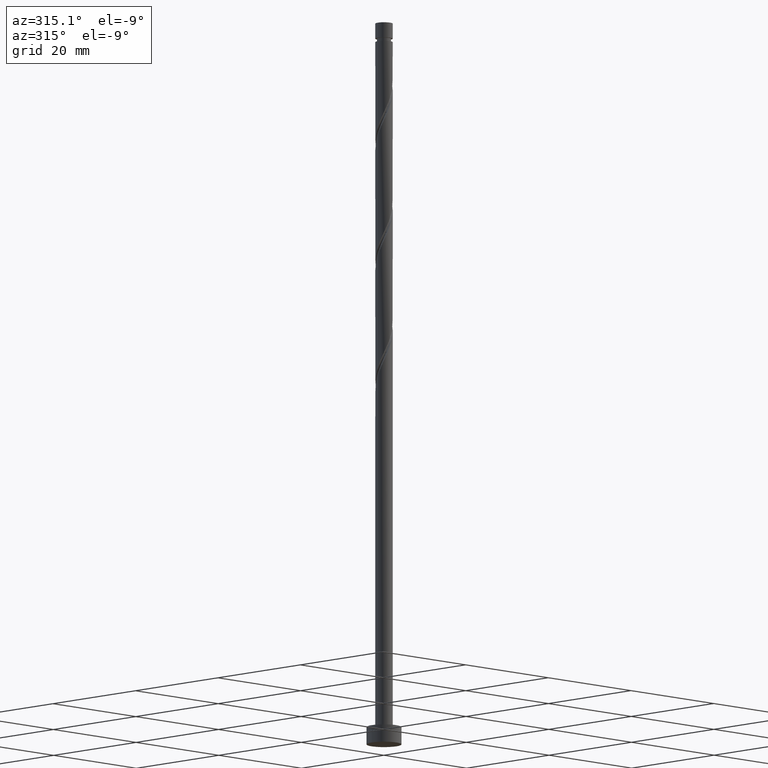
[diagram: clean part render]
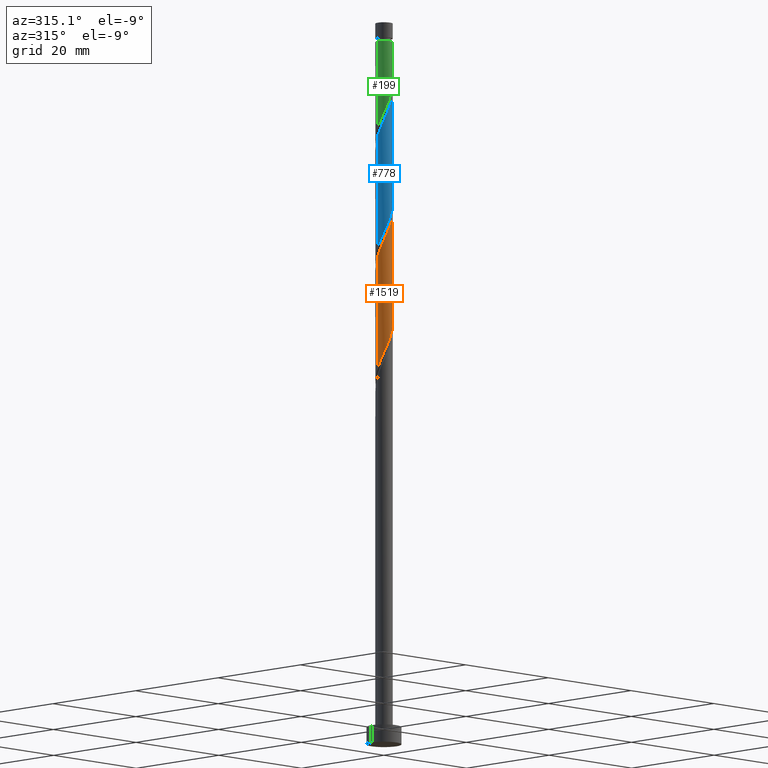
[diagram: same view with three faces highlighted in distinct colors, each labeled with its STEP entity id]
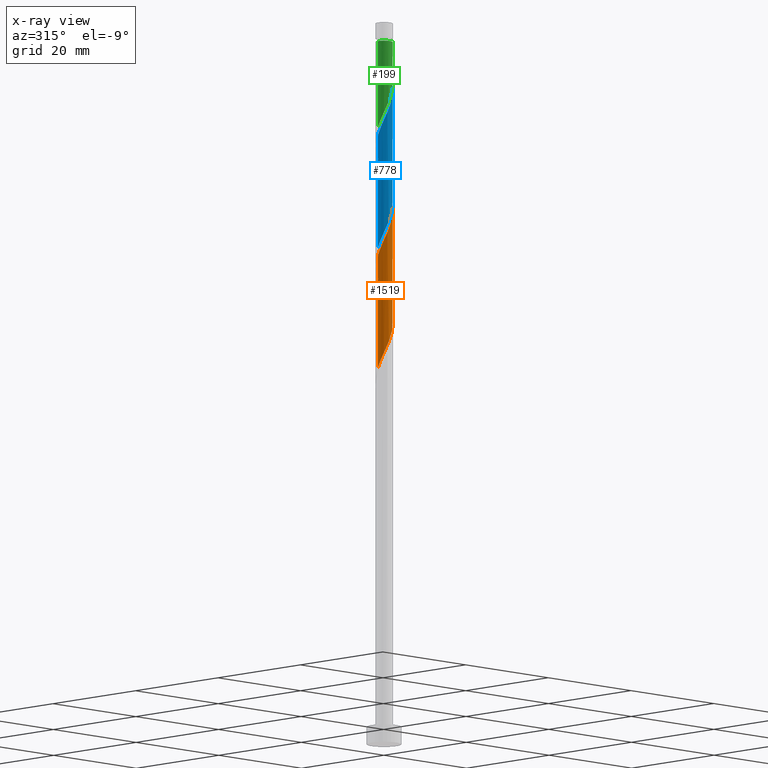
[diagram: x-ray of the same camera — body ghosted, the three highlighted faces saturated]
A machine part, auxiliary view with three faces highlighted in distinct colors.
The next image is the same camera in x-ray (body ghosted, the three faces saturated) — at least one of them is partly hidden behind the body in this view.
Their STEP definitions:

[orange] entity #1519 — the highlighted cylindrical surface (edge-blend (fillet) strip) has radius 1.5 mm, axis along (-0, -0, -1).
#41 = CARTESIAN_POINT ( 'NONE',  ( 0.7381417674387932282, -1.305812670777222406, 91.57399813780361342 ) ) ;
#43 = CARTESIAN_POINT ( 'NONE',  ( -0.7381417674387926731, -1.305812670777219964, 68.65733147113692780 ) ) ;
#54 = CARTESIAN_POINT ( 'NONE',  ( 0.4064074959020236300, -1.463309815754240795, 71.26149813780359921 ) ) ;
#64 = CARTESIAN_POINT ( 'NONE',  ( -1.105532844612584720, -1.013803299206905706, 67.61566480447028482 ) ) ;
#84 = CARTESIAN_POINT ( 'NONE',  ( 1.490293487130534444, -0.1703681960235537418, 94.69899813780359921 ) ) ;
#93 = CARTESIAN_POINT ( 'NONE',  ( 1.500000000000002665, 1.266917185180876536E-15, 95.07586236299998461 ) ) ;
#94 = CARTESIAN_POINT ( 'NONE',  ( -0.6225557971272880353, -1.364706664255441737, 88.44899813780361342 ) ) ;
#139 = CARTESIAN_POINT ( 'NONE',  ( 1.500000000000002665, 1.266917185180876536E-15, 95.07586236299998461 ) ) ;
#150 = CARTESIAN_POINT ( 'NONE',  ( 1.500000000000000222, 1.836970198721029934E-16, 125.0000000000000000 ) ) ;
#166 = CARTESIAN_POINT ( 'NONE',  ( -0.9449621764685306458, -1.188902500061263190, 68.13649813780359921 ) ) ;
#176 = VERTEX_POINT ( 'NONE', #1296 ) ;
#207 = LINE ( 'NONE', #487, #1478 ) ;
#236 = FACE_OUTER_BOUND ( 'NONE', #1024, .T. ) ;
#250 = CARTESIAN_POINT ( 'NONE',  ( 0.9449621764685315339, -1.188902500061264966, 92.09483147113692780 ) ) ;
#271 = LINE ( 'NONE', #150, #452 ) ;
#274 = ORIENTED_EDGE ( 'NONE', *, *, #951, .F. ) ;
#282 = VERTEX_POINT ( 'NONE', #139 ) ;
#286 = CARTESIAN_POINT ( 'NONE',  ( 1.500000000000000222, 2.136517146606817739E-15, 75.57213391260719959 ) ) ;
#303 = ORIENTED_EDGE ( 'NONE', *, *, #1494, .F. ) ;
#308 = CARTESIAN_POINT ( 'NONE',  ( 0.8387040983525491100, -1.266103512756638683, 72.30316480447027061 ) ) ;
#324 = CARTESIAN_POINT ( 'NONE',  ( -1.422722841493179624, -0.5313213584090550334, 85.84483147113692780 ) ) ;
#358 = CARTESIAN_POINT ( 'NONE',  ( 0.2984962311319862560, -1.470000000000002860, 90.53233147113692780 ) ) ;
#414 = CARTESIAN_POINT ( 'NONE',  ( -1.500000000000000222, 1.889130950683923294E-15, 65.15546724594054240 ) ) ;
#428 = CARTESIAN_POINT ( 'NONE',  ( 1.188902500061263190, -0.9449621764685306458, 73.34483147113694201 ) ) ;
#433 =( BOUNDED_CURVE ( )  B_SPLINE_CURVE ( 2, ( #1027, #1522, #1402, #903, #1252, #428, #789, #308, #797, #54, #555, #1513, #781, #1271, #43, #166, #64, #654, #1504, #539, #910, #1394, #414 ),
 .UNSPECIFIED., .F., .T. ) 
 B_SPLINE_CURVE_WITH_KNOTS ( ( 3, 2, 2, 2, 2, 2, 2, 2, 2, 2, 2, 3 ),
 ( 0.8045322023138552492, 0.8125000000000000000, 0.8249999999999999556, 0.8375000000000000222, 0.8499999999999999778, 0.8625000000000000444, 0.8750000000000000000, 0.8874999999999999556, 0.9000000000000000222, 0.9124999999999999778, 0.9250000000000000444, 0.9295322023138551382 ),
 .UNSPECIFIED. ) 
 CURVE ( )  GEOMETRIC_REPRESENTATION_ITEM ( )  RATIONAL_B_SPLINE_CURVE ( ( 0.9039174447099388443, 0.9019565955404682533, 0.9090909090909166101, 0.8978984914501326742, 0.9090909090909166101, 0.8978984914501326742, 0.9090909090909166101, 0.8978984914501326742, 0.9090909090909166101, 0.8978984914501326742, 0.9090909090909166101, 0.8978984914501326742, 0.9090909090909166101, 0.8978984914501326742, 0.9090909090909166101, 0.8978984914501326742, 0.9090909090909166101, 0.8978984914501326742, 0.9090909090909166101, 0.8978984914501326742, 0.9090909090909166101, 0.9050328050005811420, 0.9039174447099389553 ) ) 
 REPRESENTATION_ITEM ( '' )  );
#452 = VECTOR ( 'NONE', #1018, 1000.000000000000000 ) ;
#476 = CARTESIAN_POINT ( 'NONE',  ( -0.4064074959020249067, -1.463309815754242571, 88.96983147113692780 ) ) ;
#487 = CARTESIAN_POINT ( 'NONE',  ( -1.500000000000000222, 0.000000000000000000, 125.0000000000000000 ) ) ;
#500 = CARTESIAN_POINT ( 'NONE',  ( 1.105532844612586274, -1.013803299206907704, 92.61566480447025640 ) ) ;
#535 = ORIENTED_EDGE ( 'NONE', *, *, #1446, .T. ) ;
#539 = CARTESIAN_POINT ( 'NONE',  ( -1.463309815754240795, -0.4064074959020237410, 66.05316480447028482 ) ) ;
#555 = CARTESIAN_POINT ( 'NONE',  ( 0.1703681960235527981, -1.490293487130532002, 70.74066480447028482 ) ) ;
#593 = CARTESIAN_POINT ( 'NONE',  ( -1.470000000000002860, -0.2984962311319863670, 85.32399813780355657 ) ) ;
#654 = CARTESIAN_POINT ( 'NONE',  ( -1.266103512756638683, -0.8387040983525491100, 67.09483147113694201 ) ) ;
#661 =( BOUNDED_CURVE ( )  B_SPLINE_CURVE ( 2, ( #836, #981, #593, #324, #1183, #1325, #1093, #1574, #94, #476, #971, #1454, #358, #1117, #41, #250, #500, #866, #1126, #1354, #84, #1334, #93 ),
 .UNSPECIFIED., .F., .T. ) 
 B_SPLINE_CURVE_WITH_KNOTS ( ( 3, 2, 2, 2, 2, 2, 2, 2, 2, 2, 2, 3 ),
 ( 0.3045322023138551382, 0.3125000000000000000, 0.3249999999999999556, 0.3375000000000000222, 0.3499999999999999778, 0.3625000000000000444, 0.3750000000000000000, 0.3874999999999999556, 0.4000000000000000222, 0.4124999999999999778, 0.4250000000000000444, 0.4295322023138549716 ),
 .UNSPECIFIED. ) 
 CURVE ( )  GEOMETRIC_REPRESENTATION_ITEM ( )  RATIONAL_B_SPLINE_CURVE ( ( 0.9039174447099449505, 0.9019565955404742486, 0.9090909090909228274, 0.8978984914501387804, 0.9090909090909228274, 0.8978984914501387804, 0.9090909090909228274, 0.8978984914501387804, 0.9090909090909228274, 0.8978984914501387804, 0.9090909090909228274, 0.8978984914501387804, 0.9090909090909228274, 0.8978984914501387804, 0.9090909090909228274, 0.8978984914501387804, 0.9090909090909228274, 0.8978984914501387804, 0.9090909090909228274, 0.8978984914501387804, 0.9090909090909228274, 0.9050328050005873592, 0.9039174447099451726 ) ) 
 REPRESENTATION_ITEM ( '' )  );
#781 = CARTESIAN_POINT ( 'NONE',  ( -0.2984962311319863670, -1.470000000000000417, 69.69899813780357078 ) ) ;
#786 = ORIENTED_EDGE ( 'NONE', *, *, #1103, .F. ) ;
#789 = CARTESIAN_POINT ( 'NONE',  ( 1.013803299206905706, -1.105532844612584720, 72.82399813780359921 ) ) ;
#797 = CARTESIAN_POINT ( 'NONE',  ( 0.6225557971272865920, -1.364706664255439961, 71.78233147113695622 ) ) ;
#836 = CARTESIAN_POINT ( 'NONE',  ( -1.500000000000002665, -1.476820624145755631E-15, 84.65919569633332742 ) ) ;
#866 = CARTESIAN_POINT ( 'NONE',  ( 1.266103512756640459, -0.8387040983525511084, 93.13649813780362763 ) ) ;
#874 = CARTESIAN_POINT ( 'NONE',  ( -1.500000000000000222, 1.889130950683923294E-15, 65.15546724594054240 ) ) ;
#903 = CARTESIAN_POINT ( 'NONE',  ( 1.422722841493176738, -0.5313213584090548114, 74.38649813780359921 ) ) ;
#910 = CARTESIAN_POINT ( 'NONE',  ( -1.490293487130532002, -0.1703681960235528814, 65.53233147113694201 ) ) ;
#913 = VERTEX_POINT ( 'NONE', #874 ) ;
#942 = CARTESIAN_POINT ( 'NONE',  ( 0.000000000000000000, 0.000000000000000000, 125.0000000000000000 ) ) ;
#944 = AXIS2_PLACEMENT_3D ( 'NONE', #942, #1083, #1305 ) ;
#951 = EDGE_CURVE ( 'NONE', #282, #1112, #271, .T. ) ;
#971 = CARTESIAN_POINT ( 'NONE',  ( -0.1703681960235536863, -1.490293487130534444, 89.49066480447027061 ) ) ;
#981 = CARTESIAN_POINT ( 'NONE',  ( -1.500000000000002665, -0.1507556722888806489, 84.99350027174115496 ) ) ;
#1018 = DIRECTION ( 'NONE',  ( -0.000000000000000000, -0.000000000000000000, -1.000000000000000000 ) ) ;
#1024 = EDGE_LOOP ( 'NONE', ( #274, #303, #535, #786 ) ) ;
#1027 = CARTESIAN_POINT ( 'NONE',  ( 1.500000000000000222, 2.136517146606817344E-15, 75.57213391260719959 ) ) ;
#1083 = DIRECTION ( 'NONE',  ( -0.000000000000000000, -0.000000000000000000, -1.000000000000000000 ) ) ;
#1093 = CARTESIAN_POINT ( 'NONE',  ( -1.013803299206907704, -1.105532844612586274, 87.40733147113695622 ) ) ;
#1103 = EDGE_CURVE ( 'NONE', #1112, #913, #433, .T. ) ;
#1112 = VERTEX_POINT ( 'NONE', #286 ) ;
#1117 = CARTESIAN_POINT ( 'NONE',  ( 0.5313213584090549224, -1.422722841493179624, 91.05316480447028482 ) ) ;
#1126 = CARTESIAN_POINT ( 'NONE',  ( 1.364706664255441737, -0.6225557971272880353, 93.65733147113694201 ) ) ;
#1183 = CARTESIAN_POINT ( 'NONE',  ( -1.305812670777222406, -0.7381417674387935612, 86.36566480447025640 ) ) ;
#1252 = CARTESIAN_POINT ( 'NONE',  ( 1.305812670777219964, -0.7381417674387926731, 73.86566480447028482 ) ) ;
#1271 = CARTESIAN_POINT ( 'NONE',  ( -0.5313213584090547004, -1.422722841493176738, 69.17816480447025640 ) ) ;
#1296 = CARTESIAN_POINT ( 'NONE',  ( -1.500000000000002665, -1.476820624145755631E-15, 84.65919569633332742 ) ) ;
#1305 = DIRECTION ( 'NONE',  ( -1.000000000000000000, 0.000000000000000000, 0.000000000000000000 ) ) ;
#1325 = CARTESIAN_POINT ( 'NONE',  ( -1.188902500061264966, -0.9449621764685317560, 86.88649813780361342 ) ) ;
#1334 = CARTESIAN_POINT ( 'NONE',  ( 1.500000000000001998, -0.08546060616965421575, 94.88635127379269818 ) ) ;
#1354 = CARTESIAN_POINT ( 'NONE',  ( 1.463309815754242571, -0.4064074959020249067, 94.17816480447028482 ) ) ;
#1394 = CARTESIAN_POINT ( 'NONE',  ( -1.500000000000000222, -0.08546060616965032997, 65.34497833514781462 ) ) ;
#1402 = CARTESIAN_POINT ( 'NONE',  ( 1.470000000000000417, -0.2984962311319864781, 74.90733147113692780 ) ) ;
#1434 = CYLINDRICAL_SURFACE ( 'NONE', #944, 1.500000000000000222 ) ;
#1444 = DIRECTION ( 'NONE',  ( -0.000000000000000000, -0.000000000000000000, -1.000000000000000000 ) ) ;
#1446 = EDGE_CURVE ( 'NONE', #176, #913, #207, .T. ) ;
#1454 = CARTESIAN_POINT ( 'NONE',  ( 0.06567110385491743696, -1.517277158506825430, 90.01149813780362763 ) ) ;
#1478 = VECTOR ( 'NONE', #1444, 1000.000000000000000 ) ;
#1494 = EDGE_CURVE ( 'NONE', #176, #282, #661, .T. ) ;
#1504 = CARTESIAN_POINT ( 'NONE',  ( -1.364706664255439961, -0.6225557971272865920, 66.57399813780359921 ) ) ;
#1513 = CARTESIAN_POINT ( 'NONE',  ( -0.06567110385491804758, -1.517277158506823431, 70.21983147113695622 ) ) ;
#1519 = ADVANCED_FACE ( 'NONE', ( #236 ), #1434, .T. ) ;
#1522 = CARTESIAN_POINT ( 'NONE',  ( 1.499999999999999778, -0.1507556722888830636, 75.23782933719934363 ) ) ;
#1574 = CARTESIAN_POINT ( 'NONE',  ( -0.8387040983525508864, -1.266103512756640459, 87.92816480447028482 ) ) ;

[blue] entity #778 — the highlighted cylindrical surface (edge-blend (fillet) strip) has radius 1.5 mm, axis along (-0, -0, -1).
#105 = CARTESIAN_POINT ( 'NONE',  ( -0.8387040983525508864, -1.266103512756640459, 108.7614981378035992 ) ) ;
#116 = CARTESIAN_POINT ( 'NONE',  ( -1.013803299206907704, -1.105532844612586274, 108.2406648044702848 ) ) ;
#123 = CARTESIAN_POINT ( 'NONE',  ( 0.000000000000000000, 0.000000000000000000, 125.0000000000000000 ) ) ;
#128 = CARTESIAN_POINT ( 'NONE',  ( -1.266103512756638683, -0.8387040983525491100, 87.92816480447028482 ) ) ;
#133 = LINE ( 'NONE', #862, #998 ) ;
#141 = CARTESIAN_POINT ( 'NONE',  ( -1.105532844612584720, -1.013803299206905706, 88.44899813780359921 ) ) ;
#187 =( BOUNDED_CURVE ( )  B_SPLINE_CURVE ( 2, ( #895, #642, #1378, #773, #1263, #1144, #300, #1212, #373, #993, #854, #614, #356, #1205, #709, #1344, #141, #128, #1099, #727, #1227, #367, #961 ),
 .UNSPECIFIED., .F., .T. ) 
 B_SPLINE_CURVE_WITH_KNOTS ( ( 3, 2, 2, 2, 2, 2, 2, 2, 2, 2, 2, 3 ),
 ( 0.5545322023138554712, 0.5625000000000000000, 0.5749999999999999556, 0.5875000000000000222, 0.5999999999999999778, 0.6125000000000000444, 0.6250000000000000000, 0.6374999999999999556, 0.6500000000000000222, 0.6624999999999999778, 0.6750000000000000444, 0.6795322023138554712 ),
 .UNSPECIFIED. ) 
 CURVE ( )  GEOMETRIC_REPRESENTATION_ITEM ( )  RATIONAL_B_SPLINE_CURVE ( ( 0.9039174447099385112, 0.9019565955404683644, 0.9090909090909166101, 0.8978984914501326742, 0.9090909090909166101, 0.8978984914501326742, 0.9090909090909166101, 0.8978984914501326742, 0.9090909090909166101, 0.8978984914501326742, 0.9090909090909166101, 0.8978984914501326742, 0.9090909090909166101, 0.8978984914501326742, 0.9090909090909166101, 0.8978984914501326742, 0.9090909090909166101, 0.8978984914501326742, 0.9090909090909166101, 0.8978984914501326742, 0.9090909090909166101, 0.9050328050005806979, 0.9039174447099385112 ) ) 
 REPRESENTATION_ITEM ( '' )  );
#229 = CARTESIAN_POINT ( 'NONE',  ( 1.463309815754242571, -0.4064074959020249067, 115.0114981378035992 ) ) ;
#244 = CARTESIAN_POINT ( 'NONE',  ( 1.500000000000002442, 5.022689432373888828E-16, 115.9091956963333132 ) ) ;
#251 = DIRECTION ( 'NONE',  ( -1.000000000000000000, 0.000000000000000000, 0.000000000000000000 ) ) ;
#300 = CARTESIAN_POINT ( 'NONE',  ( 1.013803299206905706, -1.105532844612584720, 93.65733147113692780 ) ) ;
#356 = CARTESIAN_POINT ( 'NONE',  ( -0.2984962311319863670, -1.470000000000000417, 90.53233147113694201 ) ) ;
#357 = VERTEX_POINT ( 'NONE', #1332 ) ;
#367 = CARTESIAN_POINT ( 'NONE',  ( -1.500000000000000888, -0.08546060616964409884, 86.17831166848114322 ) ) ;
#373 = CARTESIAN_POINT ( 'NONE',  ( 0.6225557971272865920, -1.364706664255439961, 92.61566480447028482 ) ) ;
#399 = DIRECTION ( 'NONE',  ( -0.000000000000000000, -0.000000000000000000, -1.000000000000000000 ) ) ;
#413 = CARTESIAN_POINT ( 'NONE',  ( 1.500000000000000222, 2.136517146606817739E-15, 96.40546724594052819 ) ) ;
#429 = CARTESIAN_POINT ( 'NONE',  ( 0.9449621764685315339, -1.188902500061264966, 112.9281648044702848 ) ) ;
#478 = EDGE_CURVE ( 'NONE', #1063, #357, #1495, .T. ) ;
#563 = CARTESIAN_POINT ( 'NONE',  ( 1.266103512756640459, -0.8387040983525511084, 113.9698314711369278 ) ) ;
#572 = EDGE_CURVE ( 'NONE', #1063, #785, #1273, .T. ) ;
#580 = CARTESIAN_POINT ( 'NONE',  ( 0.06567110385491743696, -1.517277158506825430, 110.8448314711369420 ) ) ;
#614 = CARTESIAN_POINT ( 'NONE',  ( -0.06567110385491804758, -1.517277158506823431, 91.05316480447025640 ) ) ;
#638 = ORIENTED_EDGE ( 'NONE', *, *, #1213, .F. ) ;
#642 = CARTESIAN_POINT ( 'NONE',  ( 1.499999999999999334, -0.1507556722888872547, 96.07116267053270064 ) ) ;
#673 = CARTESIAN_POINT ( 'NONE',  ( 1.500000000000002442, 5.022689432373888828E-16, 115.9091956963333132 ) ) ;
#703 = CARTESIAN_POINT ( 'NONE',  ( -1.305812670777222406, -0.7381417674387935612, 107.1989981378035850 ) ) ;
#709 = CARTESIAN_POINT ( 'NONE',  ( -0.7381417674387926731, -1.305812670777219964, 89.49066480447029903 ) ) ;
#727 = CARTESIAN_POINT ( 'NONE',  ( -1.463309815754240795, -0.4064074959020237410, 86.88649813780361342 ) ) ;
#731 = VECTOR ( 'NONE', #399, 1000.000000000000000 ) ;
#737 = EDGE_LOOP ( 'NONE', ( #638, #1530, #1389, #1269 ) ) ;
#740 = DIRECTION ( 'NONE',  ( -0.000000000000000000, -0.000000000000000000, -1.000000000000000000 ) ) ;
#773 = CARTESIAN_POINT ( 'NONE',  ( 1.422722841493176738, -0.5313213584090548114, 95.21983147113694201 ) ) ;
#778 = ADVANCED_FACE ( 'NONE', ( #1110 ), #982, .T. ) ;
#785 = VERTEX_POINT ( 'NONE', #244 ) ;
#798 = CARTESIAN_POINT ( 'NONE',  ( 1.105532844612586274, -1.013803299206907704, 113.4489981378036134 ) ) ;
#815 = CARTESIAN_POINT ( 'NONE',  ( 0.2984962311319862560, -1.470000000000002860, 111.3656648044702564 ) ) ;
#822 = CARTESIAN_POINT ( 'NONE',  ( -0.1703681960235536863, -1.490293487130534444, 110.3239981378035992 ) ) ;
#830 = CARTESIAN_POINT ( 'NONE',  ( -1.188902500061264966, -0.9449621764685317560, 107.7198314711369420 ) ) ;
#854 = CARTESIAN_POINT ( 'NONE',  ( 0.1703681960235527981, -1.490293487130532002, 91.57399813780358500 ) ) ;
#862 = CARTESIAN_POINT ( 'NONE',  ( 1.500000000000000222, 1.836970198721029934E-16, 125.0000000000000000 ) ) ;
#895 = CARTESIAN_POINT ( 'NONE',  ( 1.500000000000000222, 2.136517146606817739E-15, 96.40546724594052819 ) ) ;
#937 = CARTESIAN_POINT ( 'NONE',  ( 1.490293487130534444, -0.1703681960235537418, 115.5323314711369278 ) ) ;
#955 = CARTESIAN_POINT ( 'NONE',  ( 0.5313213584090549224, -1.422722841493179624, 111.8864981378035992 ) ) ;
#961 = CARTESIAN_POINT ( 'NONE',  ( -1.500000000000000222, -2.308937828613684245E-15, 85.98880057927385678 ) ) ;
#982 = CYLINDRICAL_SURFACE ( 'NONE', #1503, 1.500000000000000222 ) ;
#993 = CARTESIAN_POINT ( 'NONE',  ( 0.4064074959020236300, -1.463309815754240795, 92.09483147113694201 ) ) ;
#998 = VECTOR ( 'NONE', #1388, 1000.000000000000000 ) ;
#1009 = VERTEX_POINT ( 'NONE', #413 ) ;
#1063 = VERTEX_POINT ( 'NONE', #1377 ) ;
#1099 = CARTESIAN_POINT ( 'NONE',  ( -1.364706664255439961, -0.6225557971272865920, 87.40733147113694201 ) ) ;
#1110 = FACE_OUTER_BOUND ( 'NONE', #737, .T. ) ;
#1123 = EDGE_CURVE ( 'NONE', #1009, #357, #187, .T. ) ;
#1144 = CARTESIAN_POINT ( 'NONE',  ( 1.188902500061263190, -0.9449621764685306458, 94.17816480447025640 ) ) ;
#1178 = CARTESIAN_POINT ( 'NONE',  ( -1.422722841493179624, -0.5313213584090550334, 106.6781648044702848 ) ) ;
#1193 = CARTESIAN_POINT ( 'NONE',  ( -1.500000000000002665, 1.394358558838124149E-15, 105.4925290296666418 ) ) ;
#1205 = CARTESIAN_POINT ( 'NONE',  ( -0.5313213584090547004, -1.422722841493176738, 90.01149813780359921 ) ) ;
#1212 = CARTESIAN_POINT ( 'NONE',  ( 0.8387040983525491100, -1.266103512756638683, 93.13649813780359921 ) ) ;
#1213 = EDGE_CURVE ( 'NONE', #785, #1009, #133, .T. ) ;
#1227 = CARTESIAN_POINT ( 'NONE',  ( -1.490293487130532002, -0.1703681960235528814, 86.36566480447027061 ) ) ;
#1253 = CARTESIAN_POINT ( 'NONE',  ( -1.500000000000000222, 0.000000000000000000, 125.0000000000000000 ) ) ;
#1263 = CARTESIAN_POINT ( 'NONE',  ( 1.305812670777219964, -0.7381417674387926731, 94.69899813780359921 ) ) ;
#1269 = ORIENTED_EDGE ( 'NONE', *, *, #1123, .F. ) ;
#1273 =( BOUNDED_CURVE ( )  B_SPLINE_CURVE ( 2, ( #1193, #1559, #1292, #1178, #703, #830, #116, #105, #1311, #1438, #822, #580, #815, #955, #1540, #429, #798, #563, #1549, #229, #937, #1286, #673 ),
 .UNSPECIFIED., .F., .T. ) 
 B_SPLINE_CURVE_WITH_KNOTS ( ( 3, 2, 2, 2, 2, 2, 2, 2, 2, 2, 2, 3 ),
 ( 0.5545322023138546941, 0.5625000000000000000, 0.5749999999999999556, 0.5875000000000000222, 0.5999999999999999778, 0.6125000000000000444, 0.6250000000000000000, 0.6374999999999999556, 0.6500000000000000222, 0.6624999999999999778, 0.6750000000000000444, 0.6795322023138552492 ),
 .UNSPECIFIED. ) 
 CURVE ( )  GEOMETRIC_REPRESENTATION_ITEM ( )  RATIONAL_B_SPLINE_CURVE ( ( 0.9039174447099451726, 0.9019565955404738045, 0.9090909090909228274, 0.8978984914501387804, 0.9090909090909228274, 0.8978984914501387804, 0.9090909090909228274, 0.8978984914501387804, 0.9090909090909228274, 0.8978984914501387804, 0.9090909090909228274, 0.8978984914501387804, 0.9090909090909228274, 0.8978984914501387804, 0.9090909090909228274, 0.8978984914501387804, 0.9090909090909228274, 0.8978984914501387804, 0.9090909090909228274, 0.8978984914501387804, 0.9090909090909228274, 0.9050328050005871372, 0.9039174447099449505 ) ) 
 REPRESENTATION_ITEM ( '' )  );
#1286 = CARTESIAN_POINT ( 'NONE',  ( 1.500000000000002665, -0.08546060616964898382, 115.7196846071260410 ) ) ;
#1292 = CARTESIAN_POINT ( 'NONE',  ( -1.470000000000002860, -0.2984962311319863670, 106.1573314711369278 ) ) ;
#1311 = CARTESIAN_POINT ( 'NONE',  ( -0.6225557971272880353, -1.364706664255441737, 109.2823314711369704 ) ) ;
#1332 = CARTESIAN_POINT ( 'NONE',  ( -1.500000000000000222, -2.308937828613683850E-15, 85.98880057927385678 ) ) ;
#1344 = CARTESIAN_POINT ( 'NONE',  ( -0.9449621764685306458, -1.188902500061263190, 88.96983147113694201 ) ) ;
#1377 = CARTESIAN_POINT ( 'NONE',  ( -1.500000000000002665, 1.394358558838124149E-15, 105.4925290296666418 ) ) ;
#1378 = CARTESIAN_POINT ( 'NONE',  ( 1.470000000000000417, -0.2984962311319864781, 95.74066480447027061 ) ) ;
#1388 = DIRECTION ( 'NONE',  ( -0.000000000000000000, -0.000000000000000000, -1.000000000000000000 ) ) ;
#1389 = ORIENTED_EDGE ( 'NONE', *, *, #478, .T. ) ;
#1438 = CARTESIAN_POINT ( 'NONE',  ( -0.4064074959020249067, -1.463309815754242571, 109.8031648044702706 ) ) ;
#1495 = LINE ( 'NONE', #1253, #731 ) ;
#1503 = AXIS2_PLACEMENT_3D ( 'NONE', #123, #740, #251 ) ;
#1530 = ORIENTED_EDGE ( 'NONE', *, *, #572, .F. ) ;
#1540 = CARTESIAN_POINT ( 'NONE',  ( 0.7381417674387932282, -1.305812670777222406, 112.4073314711369420 ) ) ;
#1549 = CARTESIAN_POINT ( 'NONE',  ( 1.364706664255441737, -0.6225557971272880353, 114.4906648044702706 ) ) ;
#1559 = CARTESIAN_POINT ( 'NONE',  ( -1.500000000000004663, -0.1507556722888723499, 105.8268336050744978 ) ) ;

[green] entity #199 — the highlighted cylindrical surface (edge-blend (fillet) strip) has radius 1.5 mm, axis along (-0, -0, -1).
#13 = CYLINDRICAL_SURFACE ( 'NONE', #602, 1.500000000000000222 ) ;
#26 = EDGE_LOOP ( 'NONE', ( #191, #320, #1196, #1172 ) ) ;
#58 = VERTEX_POINT ( 'NONE', #1181 ) ;
#88 = CARTESIAN_POINT ( 'NONE',  ( 1.188902500061263190, -0.9449621764685306458, 115.0114981378036134 ) ) ;
#97 = CARTESIAN_POINT ( 'NONE',  ( -0.9449621764685306458, -1.188902500061263190, 109.8031648044702706 ) ) ;
#163 = EDGE_CURVE ( 'NONE', #779, #175, #1303, .T. ) ;
#175 = VERTEX_POINT ( 'NONE', #807 ) ;
#191 = ORIENTED_EDGE ( 'NONE', *, *, #163, .F. ) ;
#195 = CARTESIAN_POINT ( 'NONE',  ( 1.500000000000000666, 7.946344475099041926E-16, 117.2388005792738568 ) ) ;
#199 = ADVANCED_FACE ( 'NONE', ( #1342 ), #13, .T. ) ;
#201 = CARTESIAN_POINT ( 'NONE',  ( -1.266103512756638683, -0.8387040983525491100, 108.7614981378035992 ) ) ;
#212 = CARTESIAN_POINT ( 'NONE',  ( 1.470000000000000417, -0.2984962311319864781, 116.5739981378036134 ) ) ;
#220 = CARTESIAN_POINT ( 'NONE',  ( 1.499999999999999556, -0.1507556722888858114, 116.9044960038660292 ) ) ;
#309 = CARTESIAN_POINT ( 'NONE',  ( 1.305812670777219964, -0.7381417674387926731, 115.5323314711369562 ) ) ;
#320 = ORIENTED_EDGE ( 'NONE', *, *, #875, .T. ) ;
#335 = CARTESIAN_POINT ( 'NONE',  ( 1.013803299206905706, -1.105532844612584720, 114.4906648044702564 ) ) ;
#343 = CARTESIAN_POINT ( 'NONE',  ( -0.5313213584090547004, -1.422722841493176738, 110.8448314711369420 ) ) ;
#427 = VECTOR ( 'NONE', #1246, 1000.000000000000000 ) ;
#443 = CARTESIAN_POINT ( 'NONE',  ( -0.2984962311319863670, -1.470000000000000417, 111.3656648044702706 ) ) ;
#462 = CARTESIAN_POINT ( 'NONE',  ( 0.4064074959020236300, -1.463309815754240795, 112.9281648044702990 ) ) ;
#471 = DIRECTION ( 'NONE',  ( -0.000000000000000000, -0.000000000000000000, -1.000000000000000000 ) ) ;
#474 = CARTESIAN_POINT ( 'NONE',  ( 1.500000000000000222, 1.836970198721029934E-16, 125.0000000000000000 ) ) ;
#488 = DIRECTION ( 'NONE',  ( -1.000000000000000000, 0.000000000000000000, 0.000000000000000000 ) ) ;
#552 = EDGE_CURVE ( 'NONE', #175, #58, #1262, .T. ) ;
#570 = CARTESIAN_POINT ( 'NONE',  ( -1.105532844612584720, -1.013803299206905706, 109.2823314711369562 ) ) ;
#600 = CARTESIAN_POINT ( 'NONE',  ( -1.499999999999997335, 0.000000000000000000, 121.7823314711369278 ) ) ;
#602 = AXIS2_PLACEMENT_3D ( 'NONE', #1006, #979, #986 ) ;
#605 = CIRCLE ( 'NONE', #887, 1.499999999999997335 ) ;
#680 = CARTESIAN_POINT ( 'NONE',  ( -1.364706664255439961, -0.6225557971272865920, 108.2406648044702848 ) ) ;
#687 = CARTESIAN_POINT ( 'NONE',  ( 0.1703681960235527981, -1.490293487130532002, 112.4073314711369562 ) ) ;
#694 = CARTESIAN_POINT ( 'NONE',  ( -1.500000000000000222, -0.08546060616964966383, 107.0116450018144576 ) ) ;
#768 = LINE ( 'NONE', #1044, #427 ) ;
#779 = VERTEX_POINT ( 'NONE', #1095 ) ;
#804 = CARTESIAN_POINT ( 'NONE',  ( -1.463309815754240795, -0.4064074959020237410, 107.7198314711369420 ) ) ;
#807 = CARTESIAN_POINT ( 'NONE',  ( 1.500000000000000666, 7.946344475099041926E-16, 117.2388005792738568 ) ) ;
#875 = EDGE_CURVE ( 'NONE', #779, #1405, #605, .T. ) ;
#887 = AXIS2_PLACEMENT_3D ( 'NONE', #1569, #471, #488 ) ;
#920 = CARTESIAN_POINT ( 'NONE',  ( -1.490293487130532002, -0.1703681960235528814, 107.1989981378036134 ) ) ;
#926 = CARTESIAN_POINT ( 'NONE',  ( -0.06567110385491804758, -1.517277158506823431, 111.8864981378035850 ) ) ;
#947 = CARTESIAN_POINT ( 'NONE',  ( 0.6225557971272865920, -1.364706664255439961, 113.4489981378036276 ) ) ;
#979 = DIRECTION ( 'NONE',  ( -0.000000000000000000, -0.000000000000000000, -1.000000000000000000 ) ) ;
#986 = DIRECTION ( 'NONE',  ( -1.000000000000000000, 0.000000000000000000, 0.000000000000000000 ) ) ;
#1006 = CARTESIAN_POINT ( 'NONE',  ( 0.000000000000000000, 0.000000000000000000, 125.0000000000000000 ) ) ;
#1044 = CARTESIAN_POINT ( 'NONE',  ( -1.500000000000000222, 0.000000000000000000, 125.0000000000000000 ) ) ;
#1068 = CARTESIAN_POINT ( 'NONE',  ( 0.8387040983525491100, -1.266103512756638683, 113.9698314711369278 ) ) ;
#1095 = CARTESIAN_POINT ( 'NONE',  ( 1.499999999999997335, 1.836970198721028208E-16, 121.7823314711369278 ) ) ;
#1165 = VECTOR ( 'NONE', #1412, 1000.000000000000000 ) ;
#1172 = ORIENTED_EDGE ( 'NONE', *, *, #552, .F. ) ;
#1181 = CARTESIAN_POINT ( 'NONE',  ( -1.500000000000000666, -9.670551295167703045E-16, 106.8221339126071996 ) ) ;
#1185 = CARTESIAN_POINT ( 'NONE',  ( -0.7381417674387926731, -1.305812670777219964, 110.3239981378035992 ) ) ;
#1196 = ORIENTED_EDGE ( 'NONE', *, *, #1566, .T. ) ;
#1246 = DIRECTION ( 'NONE',  ( -0.000000000000000000, -0.000000000000000000, -1.000000000000000000 ) ) ;
#1262 =( BOUNDED_CURVE ( )  B_SPLINE_CURVE ( 2, ( #195, #220, #212, #1301, #309, #88, #335, #1068, #947, #462, #687, #926, #443, #343, #1185, #97, #570, #201, #680, #804, #920, #694, #1318 ),
 .UNSPECIFIED., .F., .T. ) 
 B_SPLINE_CURVE_WITH_KNOTS ( ( 3, 2, 2, 2, 2, 2, 2, 2, 2, 2, 2, 3 ),
 ( 0.3045322023138553602, 0.3125000000000000000, 0.3250000000000000111, 0.3375000000000000222, 0.3499999999999999778, 0.3624999999999999889, 0.3750000000000000000, 0.3875000000000000111, 0.4000000000000000222, 0.4124999999999999778, 0.4249999999999999889, 0.4295322023138551382 ),
 .UNSPECIFIED. ) 
 CURVE ( )  GEOMETRIC_REPRESENTATION_ITEM ( )  RATIONAL_B_SPLINE_CURVE ( ( 0.9039174447099389553, 0.9019565955404684754, 0.9090909090909166101, 0.8978984914501326742, 0.9090909090909166101, 0.8978984914501326742, 0.9090909090909166101, 0.8978984914501326742, 0.9090909090909166101, 0.8978984914501326742, 0.9090909090909166101, 0.8978984914501326742, 0.9090909090909166101, 0.8978984914501326742, 0.9090909090909166101, 0.8978984914501326742, 0.9090909090909166101, 0.8978984914501326742, 0.9090909090909166101, 0.8978984914501326742, 0.9090909090909166101, 0.9050328050005811420, 0.9039174447099389553 ) ) 
 REPRESENTATION_ITEM ( '' )  );
#1301 = CARTESIAN_POINT ( 'NONE',  ( 1.422722841493176738, -0.5313213584090548114, 116.0531648044702706 ) ) ;
#1303 = LINE ( 'NONE', #474, #1165 ) ;
#1318 = CARTESIAN_POINT ( 'NONE',  ( -1.500000000000000666, -9.670551295167703045E-16, 106.8221339126071996 ) ) ;
#1342 = FACE_OUTER_BOUND ( 'NONE', #26, .T. ) ;
#1405 = VERTEX_POINT ( 'NONE', #600 ) ;
#1412 = DIRECTION ( 'NONE',  ( -0.000000000000000000, -0.000000000000000000, -1.000000000000000000 ) ) ;
#1566 = EDGE_CURVE ( 'NONE', #1405, #58, #768, .T. ) ;
#1569 = CARTESIAN_POINT ( 'NONE',  ( 0.000000000000000000, 0.000000000000000000, 121.7823314711369278 ) ) ;